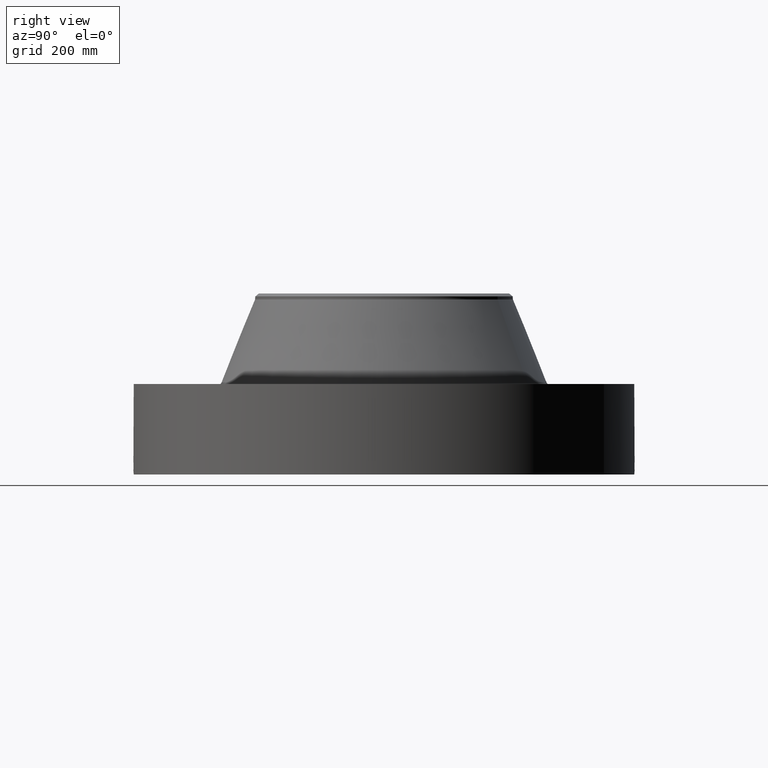
[diagram: clean part render]
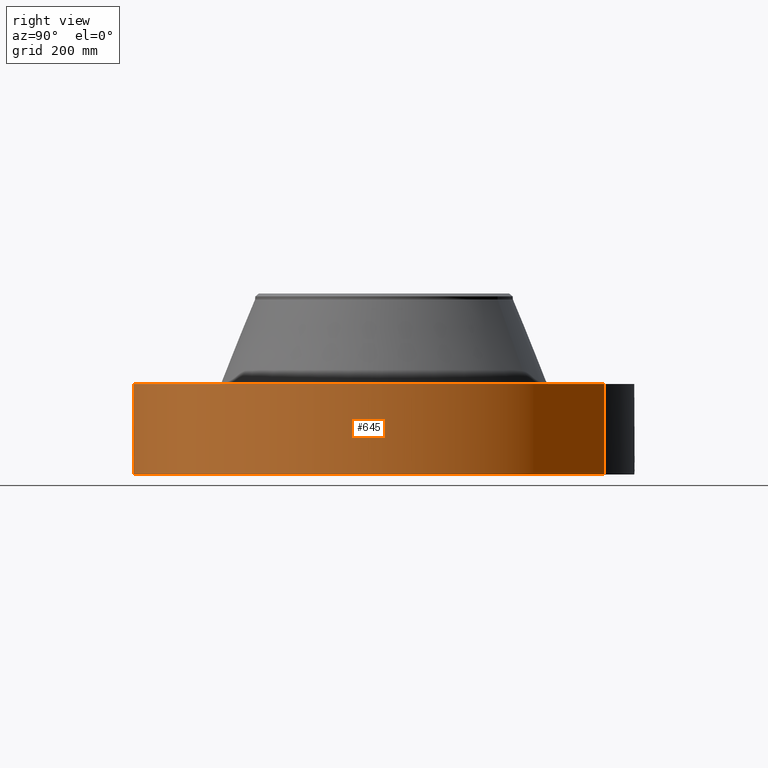
[diagram: same view with one face highlighted and labeled with its STEP entity id]
A machine part, right view. The second image highlights one B-rep face of the part: STEP entity #645.
In plain terms, the highlighted cylindrical surface (partial cylindrical patch) has radius 492.125 mm, axis along (0, 0, -1).
Its self-contained STEP definition (entity closure, byte-faithful):
#38=AXIS2_PLACEMENT_3D('Cylinder Axis2P3D',#35,#36,#37) ;
#169=AXIS2_PLACEMENT_3D('Circle Axis2P3D',#167,#168,$) ;
#549=AXIS2_PLACEMENT_3D('Circle Axis2P3D',#547,#548,$) ;
#35=CARTESIAN_POINT('Axis2P3D Location',(0.,0.,7.25000000003)) ;
#44=CARTESIAN_POINT('Vertex',(-9.28886981049,-17.0031621367,0.250000000001)) ;
#46=CARTESIAN_POINT('Vertex',(9.28886981049,17.0031621367,0.250000000001)) ;
#49=CARTESIAN_POINT('Line Origine',(-9.28886981049,-17.0031621367,3.75000000002)) ;
#53=CARTESIAN_POINT('Vertex',(-9.28886981049,-17.0031621367,7.25000000003)) ;
#60=CARTESIAN_POINT('Vertex',(9.28886981049,17.0031621367,7.25000000003)) ;
#63=CARTESIAN_POINT('Line Origine',(9.28886981049,17.0031621367,3.75000000002)) ;
#167=CARTESIAN_POINT('Axis2P3D Location',(0.,0.,0.250000000001)) ;
#547=CARTESIAN_POINT('Axis2P3D Location',(0.,0.,7.25000000003)) ;
#559=CARTESIAN_POINT('Control Point',(0.000715863899888,-19.3749999869,1.29411846178)) ;
#560=CARTESIAN_POINT('Control Point',(0.0187274883214,-19.3749993214,1.29408209957)) ;
#561=CARTESIAN_POINT('Control Point',(0.0367360096909,-19.3749733466,1.29266801176)) ;
#562=CARTESIAN_POINT('Control Point',(0.0545323828083,-19.3749232572,1.28989276382)) ;
#563=CARTESIAN_POINT('Vertex',(0.00071558600633,-19.3749999869,1.29411851089)) ;
#565=CARTESIAN_POINT('Vertex',(0.0545238961166,-19.3749235316,1.28989410461)) ;
#569=CARTESIAN_POINT('Control Point',(0.054523803306,-19.3749232813,1.28989356526)) ;
#570=CARTESIAN_POINT('Control Point',(0.0952495089847,-19.3748086734,1.28558793415)) ;
#571=CARTESIAN_POINT('Control Point',(0.135369475655,-19.3745624178,1.27388902874)) ;
#572=CARTESIAN_POINT('Control Point',(0.172364944289,-19.3742332836,1.25554232244)) ;
#573=CARTESIAN_POINT('Vertex',(0.172364944289,-19.3742332836,1.25554232244)) ;
#577=CARTESIAN_POINT('Control Point',(0.0312436872625,-19.3749748086,0.531206483314)) ;
#578=CARTESIAN_POINT('Control Point',(0.0678023318612,-19.3749158549,0.535827410901)) ;
#579=CARTESIAN_POINT('Control Point',(0.10372170762,-19.3747717037,0.544692425009)) ;
#580=CARTESIAN_POINT('Control Point',(0.138326707875,-19.3745493389,0.557689848451)) ;
#581=CARTESIAN_POINT('Control Point',(0.226423499752,-19.373793319,0.603083765597)) ;
#582=CARTESIAN_POINT('Control Point',(0.296720469374,-19.3727935842,0.673349716692)) ;
#583=CARTESIAN_POINT('Control Point',(0.331423572779,-19.3721888927,0.725376513915)) ;
#584=CARTESIAN_POINT('Control Point',(0.371132085779,-19.3714520452,0.820793001455)) ;
#585=CARTESIAN_POINT('Control Point',(0.378801310697,-19.3712955761,0.921903188619)) ;
#586=CARTESIAN_POINT('Control Point',(0.376557324656,-19.3713406701,0.962651832279)) ;
#587=CARTESIAN_POINT('Control Point',(0.358089730345,-19.3717053706,1.06075021906)) ;
#588=CARTESIAN_POINT('Control Point',(0.309416329546,-19.372565076,1.14816236132)) ;
#589=CARTESIAN_POINT('Control Point',(0.27070900684,-19.3731860125,1.19359996415)) ;
#590=CARTESIAN_POINT('Control Point',(0.224046601766,-19.3737734922,1.22991247238)) ;
#591=CARTESIAN_POINT('Control Point',(0.172364944289,-19.3742332836,1.25554232244)) ;
#592=CARTESIAN_POINT('Vertex',(0.0312436872625,-19.3749748086,0.531206483314)) ;
#596=CARTESIAN_POINT('Control Point',(0.0312436872625,-19.3749748086,0.531206483314)) ;
#597=CARTESIAN_POINT('Control Point',(0.0208245853632,-19.3749916103,0.530877072219)) ;
#598=CARTESIAN_POINT('Control Point',(0.010397084356,-19.3750000015,0.530933315092)) ;
#599=CARTESIAN_POINT('Control Point',(-2.72878354875E-006,-19.3750000001,0.531374667806)) ;
#600=CARTESIAN_POINT('Vertex',(-2.72878354541E-006,-19.3750000001,0.531374667806)) ;
#604=CARTESIAN_POINT('Control Point',(-0.192438333938,-19.3740442988,0.587755384677)) ;
#605=CARTESIAN_POINT('Control Point',(-0.148933431974,-19.3744764239,0.562242000765)) ;
#606=CARTESIAN_POINT('Control Point',(-0.101103937383,-19.3748218689,0.543850312288)) ;
#607=CARTESIAN_POINT('Control Point',(-0.0508013594717,-19.3749999929,0.533530485511)) ;
#608=CARTESIAN_POINT('Control Point',(-2.72878353154E-006,-19.3750000001,0.531374667806)) ;
#609=CARTESIAN_POINT('Vertex',(-0.192438333938,-19.3740442988,0.587755384677)) ;
#613=CARTESIAN_POINT('Control Point',(-0.192438333938,-19.3740442988,0.587755384677)) ;
#614=CARTESIAN_POINT('Control Point',(-0.249135601973,-19.3734811367,0.621005414263)) ;
#615=CARTESIAN_POINT('Control Point',(-0.298965771455,-19.372778761,0.665594552232)) ;
#616=CARTESIAN_POINT('Control Point',(-0.338770752809,-19.3720688151,0.719874275892)) ;
#617=CARTESIAN_POINT('Control Point',(-0.382536382778,-19.3712307611,0.818236552545)) ;
#618=CARTESIAN_POINT('Control Point',(-0.39076558001,-19.3710579406,0.923505600374)) ;
#619=CARTESIAN_POINT('Control Point',(-0.388528855001,-19.3711042966,0.963744549784)) ;
#620=CARTESIAN_POINT('Control Point',(-0.373405470602,-19.371412167,1.04267052834)) ;
#621=CARTESIAN_POINT('Control Point',(-0.338386080336,-19.3720580517,1.11439323086)) ;
#622=CARTESIAN_POINT('Control Point',(-0.316177990862,-19.3724439891,1.14765006714)) ;
#623=CARTESIAN_POINT('Control Point',(-0.251663804009,-19.3734494968,1.22092676047)) ;
#624=CARTESIAN_POINT('Control Point',(-0.167306065871,-19.3743818271,1.26997762707)) ;
#625=CARTESIAN_POINT('Control Point',(-0.112550833974,-19.3747986662,1.28889783269)) ;
#626=CARTESIAN_POINT('Control Point',(-0.0558579806238,-19.3750000746,1.29689292322)) ;
#627=CARTESIAN_POINT('Control Point',(2.58579355166E-005,-19.3750000001,1.29415298429)) ;
#628=CARTESIAN_POINT('Vertex',(2.58579355483E-005,-19.3750000001,1.29415298429)) ;
#632=CARTESIAN_POINT('Control Point',(0.000715585996895,-19.3749999869,1.29411851087)) ;
#633=CARTESIAN_POINT('Control Point',(0.000370746639551,-19.3749999996,1.2941360747)) ;
#634=CARTESIAN_POINT('Control Point',(2.58579403441E-005,-19.3750000001,1.29415298429)) ;
#36=DIRECTION('Axis2P3D Direction',(0.,0.,-0.0393700787402)) ;
#37=DIRECTION('Axis2P3D XDirection',(0.0188750212049,0.0345504945626,0.)) ;
#50=DIRECTION('Vector Direction',(0.,0.,-0.0393700787402)) ;
#64=DIRECTION('Vector Direction',(0.,0.,-0.0393700787402)) ;
#168=DIRECTION('Axis2P3D Direction',(0.,0.,-0.0393700787402)) ;
#548=DIRECTION('Axis2P3D Direction',(0.,0.,-0.0393700787402)) ;
#51=VECTOR('Line Direction',#50,0.0393700787402) ;
#65=VECTOR('Line Direction',#64,0.0393700787402) ;
#553=ORIENTED_EDGE('',*,*,#171,.F.) ;
#554=ORIENTED_EDGE('',*,*,#67,.T.) ;
#555=ORIENTED_EDGE('',*,*,#551,.T.) ;
#556=ORIENTED_EDGE('',*,*,#55,.F.) ;
#637=ORIENTED_EDGE('',*,*,#567,.T.) ;
#638=ORIENTED_EDGE('',*,*,#575,.T.) ;
#639=ORIENTED_EDGE('',*,*,#594,.F.) ;
#640=ORIENTED_EDGE('',*,*,#602,.T.) ;
#641=ORIENTED_EDGE('',*,*,#611,.F.) ;
#642=ORIENTED_EDGE('',*,*,#630,.T.) ;
#643=ORIENTED_EDGE('',*,*,#635,.F.) ;
#644=FACE_BOUND('',#636,.T.) ;
#645=ADVANCED_FACE('PartBody',(#557,#644),#39,.T.) ;
#558=B_SPLINE_CURVE_WITH_KNOTS('',3,(#559,#560,#561,#562),.UNSPECIFIED.,.F.,.U.,(4,4),(34.6168722926,36.6150904707),.UNSPECIFIED.) ;
#568=B_SPLINE_CURVE_WITH_KNOTS('',3,(#569,#570,#571,#572),.UNSPECIFIED.,.F.,.U.,(4,4),(0.,4.60162958373),.UNSPECIFIED.) ;
#576=B_SPLINE_CURVE_WITH_KNOTS('',5,(#577,#578,#579,#580,#581,#582,#583,#584,#585,#586,#587,#588,#589,#590,#591),.UNSPECIFIED.,.F.,.U.,(6,3,3,3,6),(0.,6.40396597331,17.27237734,24.6016623236,35.3155803099),.UNSPECIFIED.) ;
#595=B_SPLINE_CURVE_WITH_KNOTS('',3,(#596,#597,#598,#599),.UNSPECIFIED.,.F.,.U.,(4,4),(0.,1.0869021121),.UNSPECIFIED.) ;
#603=B_SPLINE_CURVE_WITH_KNOTS('',4,(#604,#605,#606,#607,#608),.UNSPECIFIED.,.F.,.U.,(5,5),(0.,7.07873473753),.UNSPECIFIED.) ;
#612=B_SPLINE_CURVE_WITH_KNOTS('',5,(#613,#614,#615,#616,#617,#618,#619,#620,#621,#622,#623,#624,#625,#626,#627),.UNSPECIFIED.,.F.,.U.,(6,3,3,3,6),(0.,11.5316007721,18.6403647715,25.7940112187,36.2398608608),.UNSPECIFIED.) ;
#631=B_SPLINE_CURVE_WITH_KNOTS('',2,(#632,#633,#634),.UNSPECIFIED.,.F.,.U.,(3,3),(1.0151980904,1.04098483471),.UNSPECIFIED.) ;
#170=CIRCLE('generated circle',#169,19.3750000001) ;
#550=CIRCLE('generated circle',#549,19.3750000001) ;
#39=CYLINDRICAL_SURFACE('generated cylinder',#38,19.3750000001) ;
#55=EDGE_CURVE('',#45,#54,#52,.F.) ;
#67=EDGE_CURVE('',#47,#61,#66,.F.) ;
#171=EDGE_CURVE('',#47,#45,#170,.T.) ;
#551=EDGE_CURVE('',#61,#54,#550,.T.) ;
#567=EDGE_CURVE('',#564,#566,#558,.T.) ;
#575=EDGE_CURVE('',#566,#574,#568,.T.) ;
#594=EDGE_CURVE('',#593,#574,#576,.T.) ;
#602=EDGE_CURVE('',#593,#601,#595,.T.) ;
#611=EDGE_CURVE('',#610,#601,#603,.T.) ;
#630=EDGE_CURVE('',#610,#629,#612,.T.) ;
#635=EDGE_CURVE('',#564,#629,#631,.T.) ;
#552=EDGE_LOOP('',(#553,#554,#555,#556)) ;
#636=EDGE_LOOP('',(#637,#638,#639,#640,#641,#642,#643)) ;
#557=FACE_OUTER_BOUND('',#552,.T.) ;
#52=LINE('Line',#49,#51) ;
#66=LINE('Line',#63,#65) ;
#45=VERTEX_POINT('',#44) ;
#47=VERTEX_POINT('',#46) ;
#54=VERTEX_POINT('',#53) ;
#61=VERTEX_POINT('',#60) ;
#564=VERTEX_POINT('',#563) ;
#566=VERTEX_POINT('',#565) ;
#574=VERTEX_POINT('',#573) ;
#593=VERTEX_POINT('',#592) ;
#601=VERTEX_POINT('',#600) ;
#610=VERTEX_POINT('',#609) ;
#629=VERTEX_POINT('',#628) ;